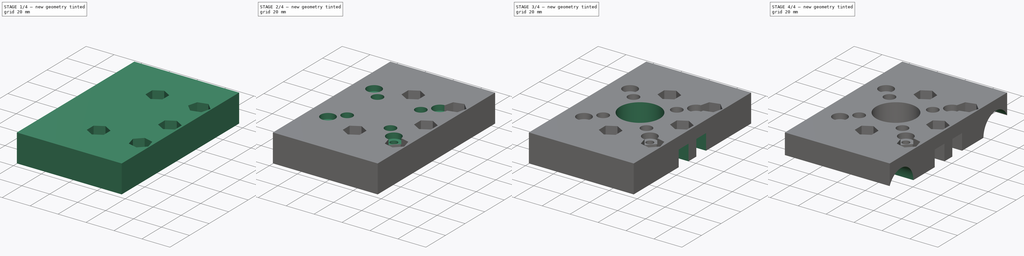
[diagram: build sequence overview — one tinted view per stage of 4, left to right]
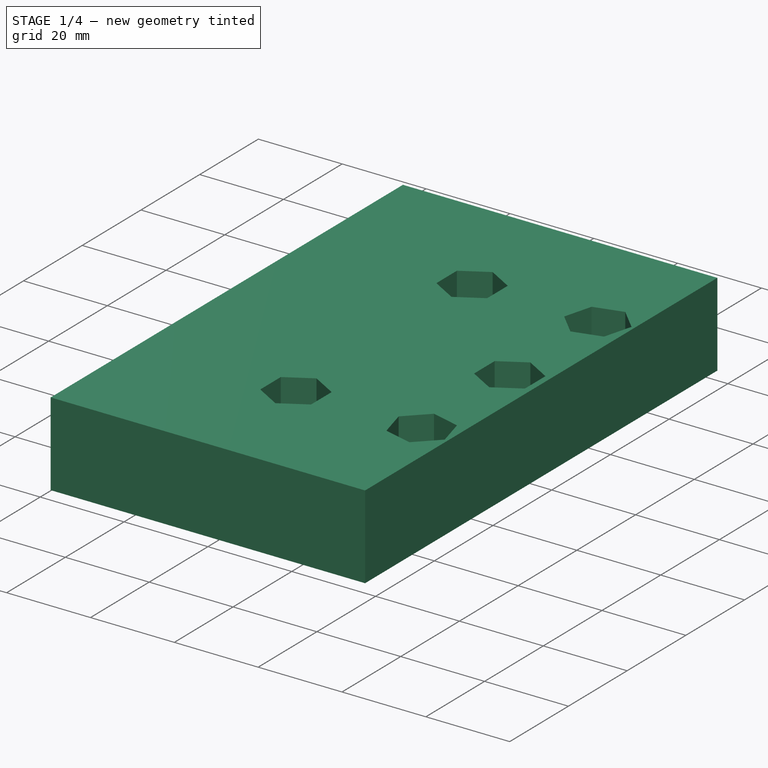
[diagram: stage 1 of 4 — iso view after this stage's code; geometry added in this stage tinted green]
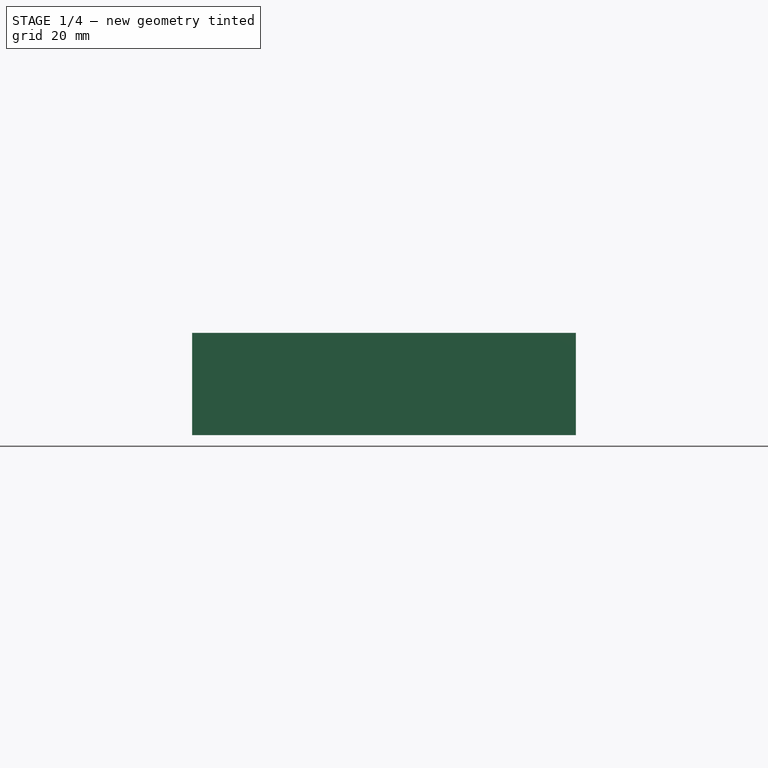
[diagram: stage 1 of 4 — front view after this stage's code; geometry added in this stage tinted green]
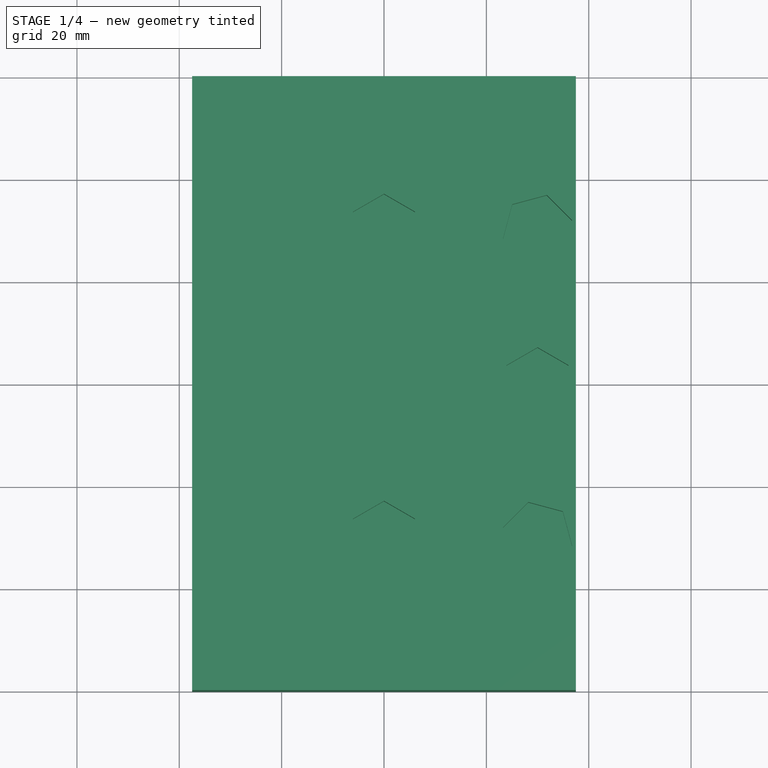
[diagram: stage 1 of 4 — top view after this stage's code; geometry added in this stage tinted green]
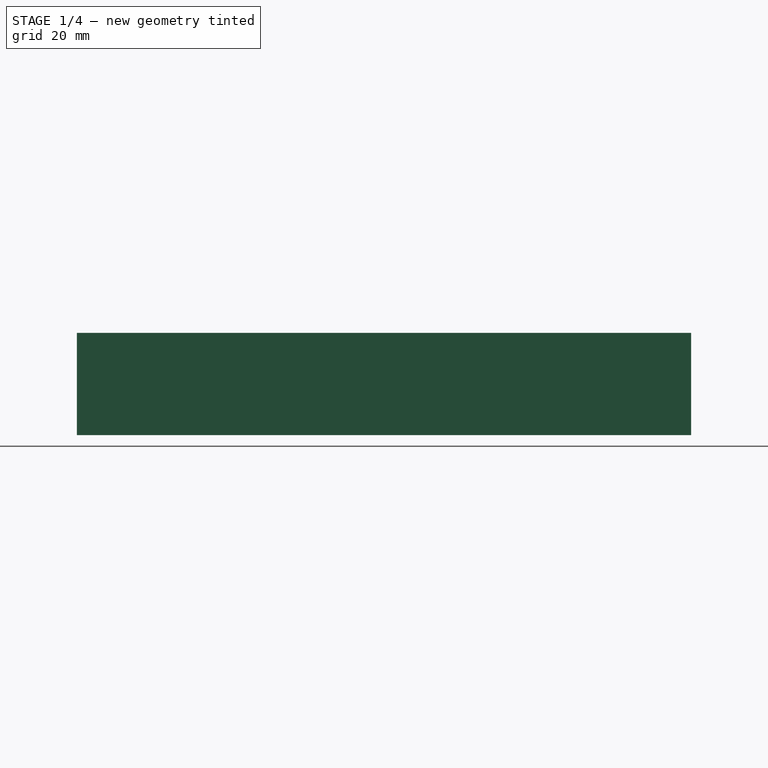
[diagram: stage 1 of 4 — right view after this stage's code; geometry added in this stage tinted green]
FCSTD DOCUMENT  (FreeCAD 0.17R12435 (Git))
Label: 15mmmotor
License: All rights reserved
LicenseURL: http://en.wikipedia.org/wiki/All_rights_reserved
objects: Sketcher::SketchObject×10, PartDesign::Pocket×9, PartDesign::Pad×1
note: 30 computed .brp shape members not serialized (recipe doc carries the construction recipe); baked Part::Feature solids carry a one-line shape summary decoded from their .brp

FEATURE [Sketcher::SketchObject] Sketch  label="MotorBlockSketch"
  MapMode = 5
  sketch-geometry (6):
    g0: LineSegment StartX=-37.5 StartY=60 StartZ=0 EndX=37.5 EndY=60 EndZ=0
    g1: LineSegment StartX=37.5 StartY=60 StartZ=0 EndX=37.5 EndY=-60 EndZ=0
    g2: LineSegment StartX=37.5 StartY=-60 StartZ=0 EndX=-37.5 EndY=-60 EndZ=0
    g3: LineSegment StartX=-37.5 StartY=-60 StartZ=0 EndX=-37.5 EndY=60 EndZ=0
    g4: GeomPoint [constr] X=0 Y=60 Z=0
    g5: GeomPoint [constr] X=-37.5 Y=0 Z=0
  constraints (14):
    c: Coincident(g0,g1)
    c: Coincident(g1,g2)
    c: Coincident(g2,g3)
    c: Coincident(g3,g0)
    c: Horizontal(g0)
    c: Horizontal(g2)
    c: Vertical(g1)
    c: Vertical(g3)
    c: Symmetric(g0,g0,g4)
    c: Symmetric(g0,g2,g5)
    c: DistanceY(g5,g-1) = 0
    c: DistanceX(g-1,g4) = 0
    c: DistanceX(g0,g0) = 75
    c: DistanceY(g1,g0) = 120
FEATURE [PartDesign::Pad] Pad  label="MotorBlockPad"
  Length = 20
  Length2 = 100
  Profile = -> Sketch
  Type = 0
FEATURE [Sketcher::SketchObject] Sketch001  label="NutCatcherFrontSketch"
  MapMode = 5
  Placement = pos=(0,0,20) rot=(0,0,1;0rad)
  Support = -> [Pad]
  sketch-geometry (42):
    g0: LineSegment [constr] StartX=0 StartY=30 StartZ=0 EndX=30 EndY=30 EndZ=0
    g1: LineSegment [constr] StartX=30 StartY=-30 StartZ=0 EndX=0 EndY=-30 EndZ=0
    g2: LineSegment [constr] StartX=0 StartY=-30 StartZ=0 EndX=0 EndY=30 EndZ=0
    g3: LineSegment [constr] StartX=30 StartY=30 StartZ=0 EndX=30 EndY=0 EndZ=0
    g4: LineSegment [constr] StartX=30 StartY=0 StartZ=0 EndX=30 EndY=-30 EndZ=0
    g5: LineSegment [constr] StartX=0 StartY=0 StartZ=0 EndX=30 EndY=30 EndZ=0
    g6: LineSegment [constr] StartX=0 StartY=0 StartZ=0 EndX=30 EndY=-30 EndZ=0
    g7: LineSegment StartX=6.06218 StartY=33.5 StartZ=0 EndX=0 EndY=37 EndZ=0
    g8: LineSegment StartX=0 StartY=37 StartZ=0 EndX=-6.06218 EndY=33.5 EndZ=0
    g9: LineSegment StartX=-6.06218 StartY=33.5 StartZ=0 EndX=-6.06218 EndY=26.5 EndZ=0
    g10: LineSegment StartX=-6.06218 StartY=26.5 StartZ=0 EndX=0 EndY=23 EndZ=0
    g11: LineSegment StartX=0 StartY=23 StartZ=0 EndX=6.06218 EndY=26.5 EndZ=0
    g12: LineSegment StartX=6.06218 StartY=26.5 StartZ=0 EndX=6.06218 EndY=33.5 EndZ=0
    g13: Circle [constr] CenterX=0 CenterY=30 CenterZ=0 NormalX=0 NormalY=0 NormalZ=1 AngleXU=0 Radius=7
    g14: LineSegment StartX=30 StartY=7 StartZ=0 EndX=23.9378 EndY=3.5 EndZ=0
    g15: LineSegment StartX=23.9378 StartY=3.5 StartZ=0 EndX=23.9378 EndY=-3.5 EndZ=0
    g16: LineSegment StartX=23.9378 StartY=-3.5 StartZ=0 EndX=30 EndY=-7 EndZ=0
    g17: LineSegment StartX=30 StartY=-7 StartZ=0 EndX=36.0622 EndY=-3.5 EndZ=0
    g18: LineSegment StartX=36.0622 StartY=-3.5 StartZ=0 EndX=36.0622 EndY=3.5 EndZ=0
    g19: LineSegment StartX=36.0622 StartY=3.5 StartZ=0 EndX=30 EndY=7 EndZ=0
    g20: Circle [constr] CenterX=30 CenterY=0 CenterZ=0 NormalX=0 NormalY=0 NormalZ=1 AngleXU=0 Radius=7
    g21: LineSegment StartX=6.06218 StartY=-26.5 StartZ=0 EndX=0 EndY=-23 EndZ=0
    g22: LineSegment StartX=0 StartY=-23 StartZ=0 EndX=-6.06218 EndY=-26.5 EndZ=0
    g23: LineSegment StartX=-6.06218 StartY=-26.5 StartZ=0 EndX=-6.06218 EndY=-33.5 EndZ=0
    g24: LineSegment StartX=-6.06218 StartY=-33.5 StartZ=0 EndX=0 EndY=-37 EndZ=0
    g25: LineSegment StartX=0 StartY=-37 StartZ=0 EndX=6.06218 EndY=-33.5 EndZ=0
    g26: LineSegment StartX=6.06218 StartY=-33.5 StartZ=0 EndX=6.06218 EndY=-26.5 EndZ=0
    g27: Circle [constr] CenterX=0 CenterY=-30 CenterZ=0 NormalX=0 NormalY=0 NormalZ=1 AngleXU=0 Radius=7
    g28: LineSegment StartX=34.9497 StartY=25.0503 StartZ=0 EndX=36.7615 EndY=31.8117 EndZ=0
    g29: LineSegment StartX=36.7615 StartY=31.8117 StartZ=0 EndX=31.8117 EndY=36.7615 EndZ=0
    g30: LineSegment StartX=31.8117 StartY=36.7615 StartZ=0 EndX=25.0503 EndY=34.9497 EndZ=0
    g31: LineSegment StartX=25.0503 StartY=34.9497 StartZ=0 EndX=23.2385 EndY=28.1883 EndZ=0
    g32: LineSegment StartX=23.2385 StartY=28.1883 StartZ=0 EndX=28.1883 EndY=23.2385 EndZ=0
    g33: LineSegment StartX=28.1883 StartY=23.2385 StartZ=0 EndX=34.9497 EndY=25.0503 EndZ=0
    g34: Circle [constr] CenterX=30 CenterY=30 CenterZ=0 NormalX=0 NormalY=0 NormalZ=1 AngleXU=0 Radius=7
    g35: LineSegment StartX=34.9497 StartY=-25.0503 StartZ=0 EndX=28.1883 EndY=-23.2385 EndZ=0
    g36: LineSegment StartX=28.1883 StartY=-23.2385 StartZ=0 EndX=23.2385 EndY=-28.1883 EndZ=0
    g37: LineSegment StartX=23.2385 StartY=-28.1883 StartZ=0 EndX=25.0503 EndY=-34.9497 EndZ=0
    g38: LineSegment StartX=25.0503 StartY=-34.9497 StartZ=0 EndX=31.8117 EndY=-36.7615 EndZ=0
    g39: LineSegment StartX=31.8117 StartY=-36.7615 StartZ=0 EndX=36.7615 EndY=-31.8117 EndZ=0
    g40: LineSegment StartX=36.7615 StartY=-31.8117 StartZ=0 EndX=34.9497 EndY=-25.0503 EndZ=0
    g41: Circle [constr] CenterX=30 CenterY=-30 CenterZ=0 NormalX=0 NormalY=0 NormalZ=1 AngleXU=0 Radius=7
  constraints (98):
    c: Coincident(g1,g2)
    c: Coincident(g2,g0)
    c: Horizontal(g0)
    c: Horizontal(g1)
    c: Vertical(g2)
    c: Vertical(g3)
    c: Vertical(g4)
    c: Coincident(g3,g0)
    c: Coincident(g1,g4)
    c: Coincident(g3,g4)
    c: Equal(g3,g4)
    c: Symmetric(g2,g2,g-1)
    c: Equal(g0,g3)
    c: DistanceX(g0,g0) = 30
    c: Coincident(g5,g-1)
    c: Coincident(g5,g0)
    c: Coincident(g6,g-1)
    c: Coincident(g1,g6)
    c: Coincident(g7,g8)
    c: Coincident(g8,g9)
    c: Coincident(g9,g10)
    c: Coincident(g10,g11)
    c: Coincident(g11,g12)
    c: Coincident(g12,g7)
    c: Equal(g7, g8-g12) x5
    c: PointOnObject(g7,g13)
    c: PointOnObject(g8,g13)
    c: PointOnObject(g9,g13)
    c: PointOnObject(g10,g13)
    c: PointOnObject(g11,g13)
    c: PointOnObject(g12,g13)
    c: Vertical(g12)
    c: Coincident(g0,g13)
    c: Coincident(g14,g15)
    c: Coincident(g15,g16)
    c: Coincident(g16,g17)
    c: Coincident(g17,g18)
    c: Coincident(g18,g19)
    c: Coincident(g19,g14)
    c: Equal(g14, g15-g19) x5
    c: PointOnObject(g14,g20)
    c: PointOnObject(g15,g20)
    c: PointOnObject(g16,g20)
    c: PointOnObject(g17,g20)
    c: PointOnObject(g18,g20)
    c: PointOnObject(g19,g20)
    c: Vertical(g18)
    c: Coincident(g3,g20)
    c: Coincident(g21,g22)
    c: Coincident(g22,g23)
    c: Coincident(g23,g24)
    c: Coincident(g24,g25)
    c: Coincident(g25,g26)
    c: Coincident(g26,g21)
    c: Equal(g21, g22-g26) x5
    c: PointOnObject(g21,g27)
    c: PointOnObject(g22,g27)
    c: PointOnObject(g23,g27)
    c: PointOnObject(g24,g27)
    c: PointOnObject(g25,g27)
    c: PointOnObject(g26,g27)
    c: Vertical(g26)
    c: Coincident(g1,g27)
    c: Coincident(g28,g29)
    c: Coincident(g29,g30)
    c: Coincident(g30,g31)
    c: Coincident(g31,g32)
    c: Coincident(g32,g33)
    c: Coincident(g33,g28)
    c: Equal(g28, g29-g33) x5
    c: PointOnObject(g28,g34)
    c: PointOnObject(g29,g34)
    c: PointOnObject(g30,g34)
    c: PointOnObject(g31,g34)
    c: PointOnObject(g32,g34)
    c: PointOnObject(g33,g34)
    c: Coincident(g34,g0)
    c: Perpendicular(g5,g32)
    c: Coincident(g35,g36)
    c: Coincident(g36,g37)
    c: Coincident(g37,g38)
    c: Coincident(g38,g39)
    c: Coincident(g39,g40)
    c: Coincident(g40,g35)
    c: Equal(g35, g36-g40) x5
    c: PointOnObject(g35,g41)
    c: PointOnObject(g36,g41)
    c: PointOnObject(g37,g41)
    c: PointOnObject(g38,g41)
    c: PointOnObject(g39,g41)
    c: PointOnObject(g40,g41)
    c: Coincident(g41,g1)
    c: Perpendicular(g6,g36)
    c: Equal(g41,g27)
    c: Equal(g27,g20)
    c: Equal(g20,g34)
    c: Equal(g34,g13)
    c: Radius(g13) = 7
FEATURE [PartDesign::Pocket] Pocket  label="NutCatcherFrontPocket"
  Length = 6.604
  Profile = -> Sketch001
  Type = 0
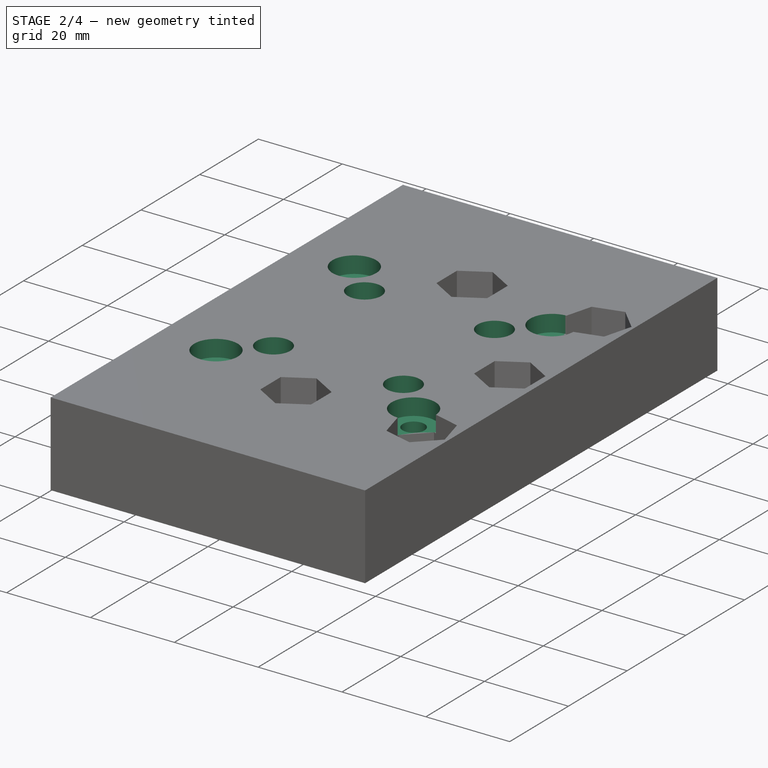
[diagram: stage 2 of 4 — iso view after this stage's code; geometry added in this stage tinted green]
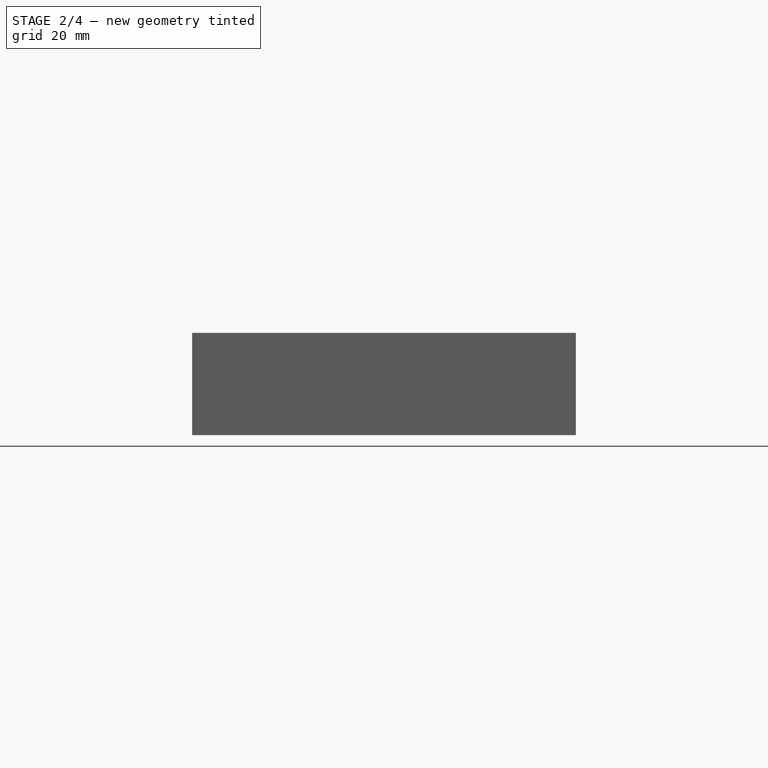
[diagram: stage 2 of 4 — front view after this stage's code; geometry added in this stage tinted green]
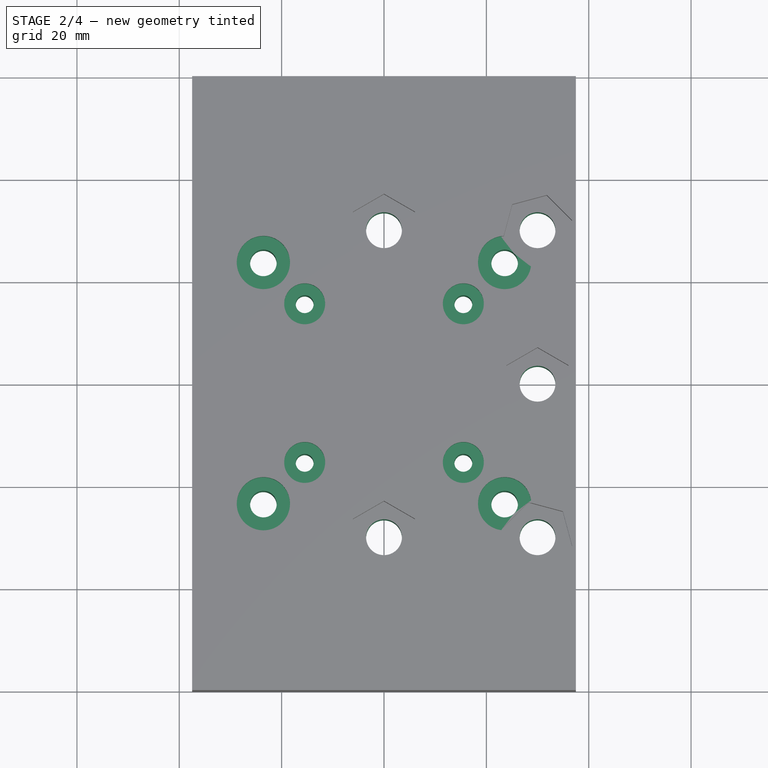
[diagram: stage 2 of 4 — top view after this stage's code; geometry added in this stage tinted green]
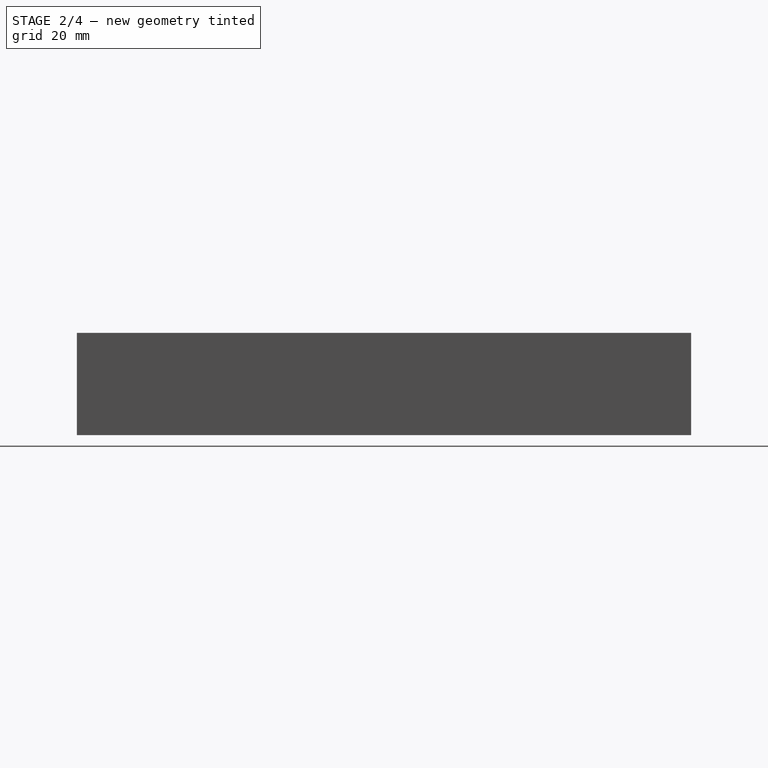
[diagram: stage 2 of 4 — right view after this stage's code; geometry added in this stage tinted green]
FEATURE [Sketcher::SketchObject] Sketch002  label="BoltHolesFrontSketch"
  MapMode = 5
  Placement = pos=(0,0,13.396) rot=(0,0,1;0rad)
  Support = -> [Pocket]
  sketch-geometry (10):
    g0: LineSegment [constr] StartX=0 StartY=30 StartZ=0 EndX=30 EndY=30 EndZ=0
    g1: LineSegment [constr] StartX=30 StartY=-30 StartZ=0 EndX=0 EndY=-30 EndZ=0
    g2: LineSegment [constr] StartX=0 StartY=-30 StartZ=0 EndX=0 EndY=30 EndZ=0
    g3: LineSegment [constr] StartX=30 StartY=30 StartZ=0 EndX=30 EndY=0 EndZ=0
    g4: LineSegment [constr] StartX=30 StartY=0 StartZ=0 EndX=30 EndY=-30 EndZ=0
    g5: Circle CenterX=0 CenterY=30 CenterZ=0 NormalX=0 NormalY=0 NormalZ=1 AngleXU=0 Radius=3.5
    g6: Circle CenterX=30 CenterY=30 CenterZ=0 NormalX=0 NormalY=0 NormalZ=1 AngleXU=0 Radius=3.5
    g7: Circle CenterX=30 CenterY=-30 CenterZ=0 NormalX=0 NormalY=0 NormalZ=1 AngleXU=0 Radius=3.5
    g8: Circle CenterX=0 CenterY=-30 CenterZ=0 NormalX=0 NormalY=0 NormalZ=1 AngleXU=0 Radius=3.5
    g9: Circle CenterX=30 CenterY=0 CenterZ=0 NormalX=0 NormalY=0 NormalZ=1 AngleXU=0 Radius=3.5
  constraints (25):
    c: Coincident(g1,g2)
    c: Coincident(g2,g0)
    c: Horizontal(g0)
    c: Horizontal(g1)
    c: Vertical(g2)
    c: Symmetric(g2,g2,g-1)
    c: Vertical(g3)
    c: Coincident(g3,g0)
    c: Vertical(g4)
    c: Coincident(g4,g1)
    c: Coincident(g4,g3)
    c: DistanceY(g3,g-1) = 0
    c: Equal(g3,g4)
    c: Equal(g0,g3)
    c: DistanceX(g0,g0) = 30
    c: Equal(g8,g7)
    c: Equal(g7,g6)
    c: Equal(g6,g5)
    c: Radius(g5) = 3.5
    c: Coincident(g0,g5)
    c: Coincident(g0,g6)
    c: Equal(g9,g5)
    c: Coincident(g3,g9)
    c: Coincident(g1,g7)
    c: Coincident(g1,g8)
FEATURE [PartDesign::Pocket] Pocket001  label="BoltHolesFrontPocket"
  Length = 5
  Profile = -> Sketch002
  Type = 1
FEATURE [Sketcher::SketchObject] Sketch003  label="NemaBoltSinkSketch"
  MapMode = 5
  Placement = pos=(0,0,20) rot=(0,0,1;0rad)
  Support = -> [Pocket001]
  sketch-geometry (20):
    g0: LineSegment [constr] StartX=-23.57 StartY=23.57 StartZ=0 EndX=23.57 EndY=23.57 EndZ=0
    g1: LineSegment [constr] StartX=23.57 StartY=23.57 StartZ=0 EndX=23.57 EndY=-23.57 EndZ=0
    g2: LineSegment [constr] StartX=23.57 StartY=-23.57 StartZ=0 EndX=-23.57 EndY=-23.57 EndZ=0
    g3: LineSegment [constr] StartX=-23.57 StartY=-23.57 StartZ=0 EndX=-23.57 EndY=23.57 EndZ=0
    g4: GeomPoint [constr] X=-23.57 Y=0 Z=0
    g5: GeomPoint [constr] X=0 Y=23.57 Z=0
    g6: Circle CenterX=-23.57 CenterY=23.57 CenterZ=0 NormalX=0 NormalY=0 NormalZ=1 AngleXU=0 Radius=5.2
    g7: Circle CenterX=23.57 CenterY=23.57 CenterZ=0 NormalX=0 NormalY=0 NormalZ=1 AngleXU=0 Radius=5.2
    g8: Circle CenterX=23.57 CenterY=-23.57 CenterZ=0 NormalX=0 NormalY=0 NormalZ=1 AngleXU=0 Radius=5.2
    g9: Circle CenterX=-23.57 CenterY=-23.57 CenterZ=0 NormalX=0 NormalY=0 NormalZ=1 AngleXU=0 Radius=5.2
    g10: LineSegment [constr] StartX=-15.5 StartY=15.5 StartZ=0 EndX=15.5 EndY=15.5 EndZ=0
    g11: LineSegment [constr] StartX=15.5 StartY=15.5 StartZ=0 EndX=15.5 EndY=-15.5 EndZ=0
    g12: LineSegment [constr] StartX=15.5 StartY=-15.5 StartZ=0 EndX=-15.5 EndY=-15.5 EndZ=0
    g13: LineSegment [constr] StartX=-15.5 StartY=-15.5 StartZ=0 EndX=-15.5 EndY=15.5 EndZ=0
    g14: GeomPoint [constr] X=-15.5 Y=0 Z=0
    g15: GeomPoint [constr] X=0 Y=15.5 Z=0
    g16: Circle CenterX=-15.5 CenterY=15.5 CenterZ=0 NormalX=0 NormalY=0 NormalZ=1 AngleXU=0 Radius=4
    g17: Circle CenterX=15.5 CenterY=15.5 CenterZ=0 NormalX=0 NormalY=0 NormalZ=1 AngleXU=0 Radius=4
    g18: Circle CenterX=15.5 CenterY=-15.5 CenterZ=0 NormalX=0 NormalY=0 NormalZ=1 AngleXU=0 Radius=4
    g19: Circle CenterX=-15.5 CenterY=-15.5 CenterZ=0 NormalX=0 NormalY=0 NormalZ=1 AngleXU=0 Radius=4
  constraints (44):
    c: Coincident(g0,g1)
    c: Coincident(g1,g2)
    c: Coincident(g2,g3)
    c: Coincident(g3,g0)
    c: Horizontal(g0)
    c: Horizontal(g2)
    c: Vertical(g1)
    c: Vertical(g3)
    c: Symmetric(g0,g0,g5)
    c: Symmetric(g0,g2,g4)
    c: DistanceY(g4,g-1) = 0
    c: DistanceX(g5,g-1) = 0
    c: Equal(g3,g0)
    c: DistanceX(g0,g0) = 47.14
    c: Coincident(g6,g0)
    c: Coincident(g0,g7)
    c: Coincident(g2,g9)
    c: Coincident(g1,g8)
    c: Equal(g6,g7)
    c: Equal(g7,g8)
    c: Equal(g8,g9)
    c: Radius(g6) = 5.2
    c: Coincident(g10,g11)
    c: Coincident(g11,g12)
    c: Coincident(g12,g13)
    c: Coincident(g13,g10)
    c: Horizontal(g10)
    c: Horizontal(g12)
    c: Vertical(g11)
    c: Vertical(g13)
    c: Symmetric(g10,g10,g15)
    c: Symmetric(g10,g12,g14)
    c: Equal(g13,g10)
    c: DistanceX(g10,g10) = 31
    c: DistanceY(g14,g-1) = 0
    c: DistanceX(g15,g-1) = 0
    c: Coincident(g12,g19)
    c: Coincident(g11,g18)
    c: Coincident(g10,g17)
    c: Coincident(g10,g16)
    c: Equal(g18,g17)
    c: Equal(g17,g16)
    c: Equal(g16,g19)
    c: Radius(g16) = 4
FEATURE [PartDesign::Pocket] Pocket002  label="NemaBoltSinkPocket"
  Length = 4
  Profile = -> Sketch003
  Type = 0
FEATURE [Sketcher::SketchObject] Sketch004  label="NemaBoltHolesSketch"
  MapMode = 5
  Placement = pos=(0,0,16) rot=(0,0,1;0rad)
  Support = -> [Pocket002]
  sketch-geometry (20):
    g0: LineSegment [constr] StartX=-23.57 StartY=23.57 StartZ=0 EndX=23.57 EndY=23.57 EndZ=0
    g1: LineSegment [constr] StartX=23.57 StartY=23.57 StartZ=0 EndX=23.57 EndY=-23.57 EndZ=0
    g2: LineSegment [constr] StartX=23.57 StartY=-23.57 StartZ=0 EndX=-23.57 EndY=-23.57 EndZ=0
    g3: LineSegment [constr] StartX=-23.57 StartY=-23.57 StartZ=0 EndX=-23.57 EndY=23.57 EndZ=0
    g4: GeomPoint [constr] X=-23.57 Y=0 Z=0
    g5: GeomPoint [constr] X=0 Y=23.57 Z=0
    g6: Circle CenterX=-23.57 CenterY=23.57 CenterZ=0 NormalX=0 NormalY=0 NormalZ=1 AngleXU=0 Radius=2.6
    g7: Circle CenterX=23.57 CenterY=23.57 CenterZ=0 NormalX=0 NormalY=0 NormalZ=1 AngleXU=0 Radius=2.6
    g8: Circle CenterX=23.57 CenterY=-23.57 CenterZ=0 NormalX=0 NormalY=0 NormalZ=1 AngleXU=0 Radius=2.6
    g9: Circle CenterX=-23.57 CenterY=-23.57 CenterZ=0 NormalX=0 NormalY=0 NormalZ=1 AngleXU=0 Radius=2.6
    g10: LineSegment [constr] StartX=-15.5 StartY=15.5 StartZ=0 EndX=15.5 EndY=15.5 EndZ=0
    g11: LineSegment [constr] StartX=15.5 StartY=15.5 StartZ=0 EndX=15.5 EndY=-15.5 EndZ=0
    g12: LineSegment [constr] StartX=15.5 StartY=-15.5 StartZ=0 EndX=-15.5 EndY=-15.5 EndZ=0
    g13: LineSegment [constr] StartX=-15.5 StartY=-15.5 StartZ=0 EndX=-15.5 EndY=15.5 EndZ=0
    g14: GeomPoint [constr] X=-15.5 Y=0 Z=0
    g15: GeomPoint [constr] X=0 Y=15.5 Z=0
    g16: Circle CenterX=-15.5 CenterY=15.5 CenterZ=0 NormalX=0 NormalY=0 NormalZ=1 AngleXU=0 Radius=1.75
    g17: Circle CenterX=15.5 CenterY=15.5 CenterZ=0 NormalX=0 NormalY=0 NormalZ=1 AngleXU=0 Radius=1.75
    g18: Circle CenterX=-15.5 CenterY=-15.5 CenterZ=0 NormalX=0 NormalY=0 NormalZ=1 AngleXU=0 Radius=1.75
    g19: Circle CenterX=15.5 CenterY=-15.5 CenterZ=0 NormalX=0 NormalY=0 NormalZ=1 AngleXU=0 Radius=1.75
  constraints (44):
    c: Coincident(g0,g1)
    c: Coincident(g1,g2)
    c: Coincident(g2,g3)
    c: Coincident(g3,g0)
    c: Horizontal(g0)
    c: Horizontal(g2)
    c: Vertical(g1)
    c: Vertical(g3)
    c: Symmetric(g0,g0,g5)
    c: Symmetric(g0,g2,g4)
    c: DistanceY(g4,g-1) = 0
    c: DistanceX(g5,g-1) = 0
    c: Equal(g3,g0)
    c: DistanceX(g0,g0) = 47.14
    c: Equal(g9,g8)
    c: Equal(g8,g7)
    c: Equal(g7,g6)
    c: Coincident(g0,g6)
    c: Coincident(g0,g7)
    c: Coincident(g1,g8)
    c: Coincident(g2,g9)
    c: Radius(g6) = 2.6
    c: Coincident(g10,g11)
    c: Coincident(g11,g12)
    c: Coincident(g12,g13)
    c: Coincident(g13,g10)
    c: Horizontal(g10)
    c: Horizontal(g12)
    c: Vertical(g11)
    c: Vertical(g13)
    c: Symmetric(g10,g10,g15)
    c: Symmetric(g10,g12,g14)
    c: DistanceY(g14,g-1) = 0
    c: DistanceX(g15,g-1) = 0
    c: Equal(g13,g10)
    c: DistanceX(g10,g10) = 31
    c: Equal(g19,g17)
    c: Equal(g17,g16)
    c: Equal(g16,g18)
    c: Coincident(g19,g11)
    c: Coincident(g10,g17)
    c: Coincident(g10,g16)
    c: Coincident(g12,g18)
    c: Radius(g16) = 1.75
FEATURE [PartDesign::Pocket] Pocket003  label="NemaBoltHolesPocket"
  Length = 5
  Profile = -> Sketch004
  Type = 1
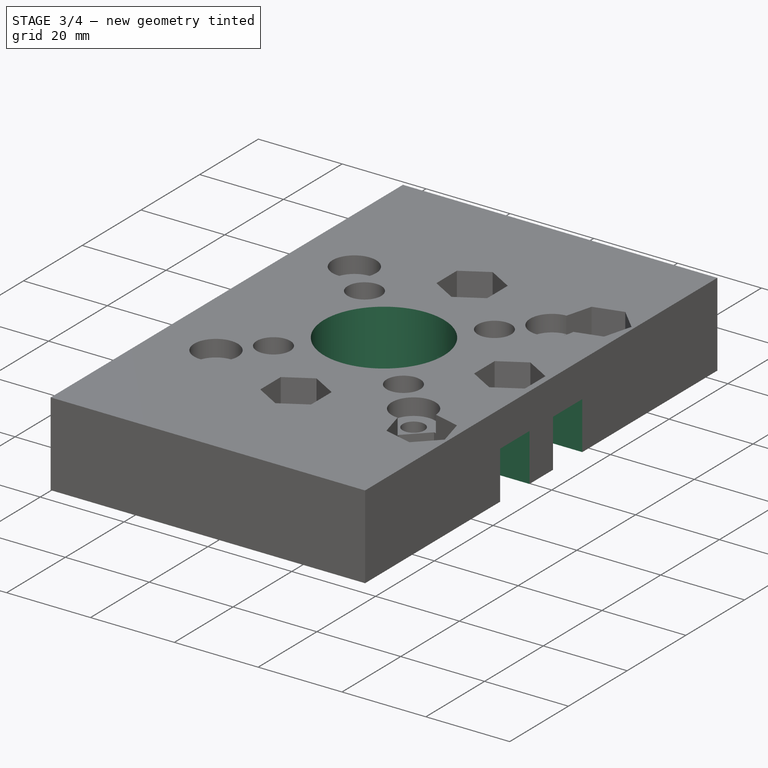
[diagram: stage 3 of 4 — iso view after this stage's code; geometry added in this stage tinted green]
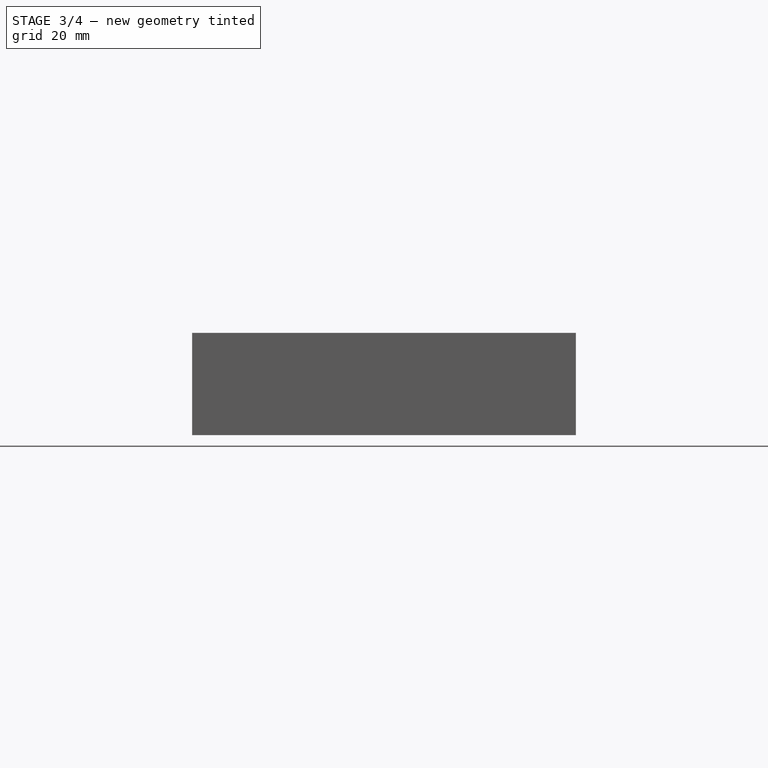
[diagram: stage 3 of 4 — front view after this stage's code; geometry added in this stage tinted green]
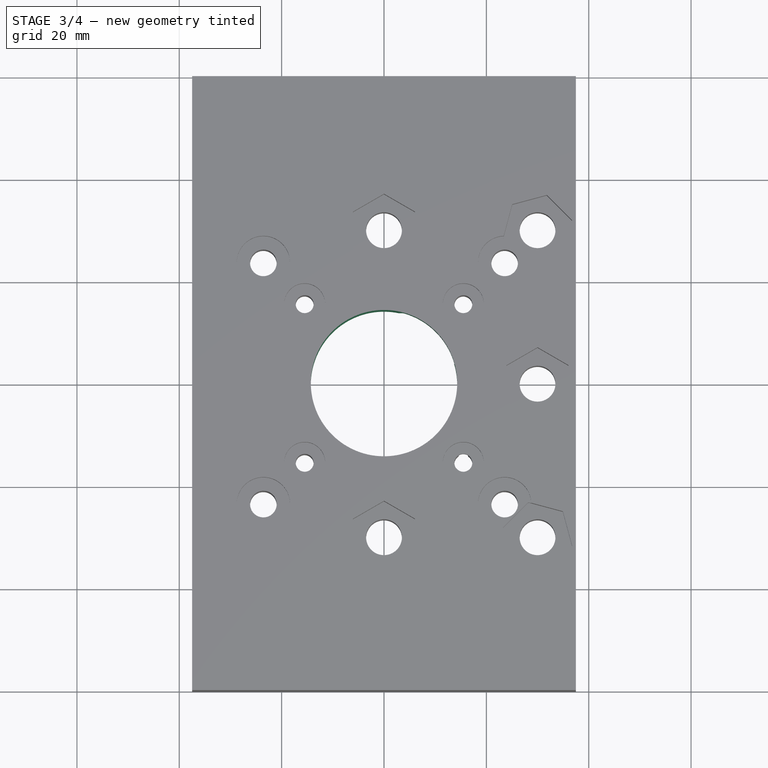
[diagram: stage 3 of 4 — top view after this stage's code; geometry added in this stage tinted green]
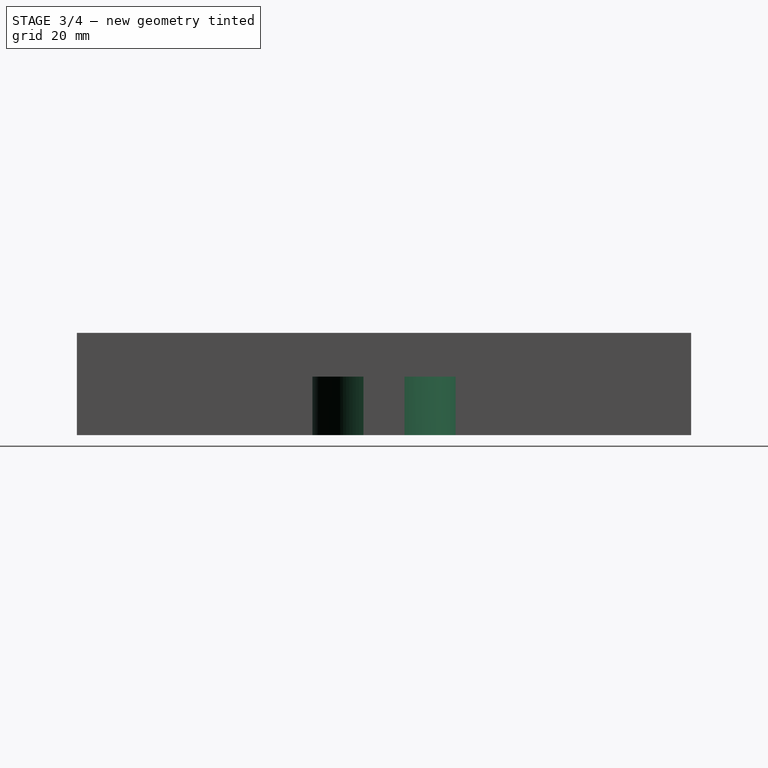
[diagram: stage 3 of 4 — right view after this stage's code; geometry added in this stage tinted green]
FEATURE [Sketcher::SketchObject] Sketch005  label="MotorHoleSketch"
  MapMode = 5
  Placement = pos=(0,0,20) rot=(0,0,1;0rad)
  Support = -> [Pocket003]
  sketch-geometry (1):
    g0: Circle CenterX=0 CenterY=0 CenterZ=0 NormalX=0 NormalY=0 NormalZ=1 AngleXU=0 Radius=14.3
  constraints (2):
    c: Coincident(g0,g-1)
    c: Radius(g0) = 14.3
FEATURE [PartDesign::Pocket] Pocket004  label="MotorHolePocket"
  Length = 5
  Profile = -> Sketch005
  Type = 1
FEATURE [Sketcher::SketchObject] Sketch006  label="BeltPassageSketch"
  MapMode = 5
  Placement = pos=(37.5,0,0) rot=(0.57735,0.57735,0.57735;2.0944rad)
  Support = -> [Pocket004]
  sketch-geometry (10):
    g0: LineSegment [constr] StartX=0 StartY=0 StartZ=0 EndX=-4 EndY=0 EndZ=0
    g1: LineSegment [constr] StartX=0 StartY=0 StartZ=0 EndX=4 EndY=0 EndZ=0
    g2: LineSegment StartX=-4 StartY=0 StartZ=0 EndX=-14 EndY=0 EndZ=0
    g3: LineSegment StartX=-14 StartY=0 StartZ=0 EndX=-14 EndY=11.43 EndZ=0
    g4: LineSegment StartX=-14 StartY=11.43 StartZ=0 EndX=-4 EndY=11.43 EndZ=0
    g5: LineSegment StartX=-4 StartY=11.43 StartZ=0 EndX=-4 EndY=0 EndZ=0
    g6: LineSegment StartX=4 StartY=0 StartZ=0 EndX=14 EndY=0 EndZ=0
    g7: LineSegment StartX=14 StartY=0 StartZ=0 EndX=14 EndY=11.43 EndZ=0
    g8: LineSegment StartX=14 StartY=11.43 StartZ=0 EndX=4 EndY=11.43 EndZ=0
    g9: LineSegment StartX=4 StartY=11.43 StartZ=0 EndX=4 EndY=0 EndZ=0
  constraints (28):
    c: Horizontal(g0)
    c: Horizontal(g1)
    c: Coincident(g0,g-1)
    c: Coincident(g1,g-1)
    c: Equal(g0,g1)
    c: DistanceX(g0,g-1) = 4
    c: Coincident(g2,g3)
    c: Coincident(g3,g4)
    c: Coincident(g4,g5)
    c: Coincident(g5,g2)
    c: Horizontal(g2)
    c: Horizontal(g4)
    c: Vertical(g3)
    c: Vertical(g5)
    c: Coincident(g2,g0)
    c: Coincident(g6,g7)
    c: Coincident(g7,g8)
    c: Coincident(g8,g9)
    c: Coincident(g9,g6)
    c: Horizontal(g6)
    c: Horizontal(g8)
    c: Vertical(g7)
    c: Vertical(g9)
    c: Coincident(g6,g1)
    c: Equal(g4,g8)
    c: Equal(g3,g9)
    c: DistanceX(g3,g4) = 10
    c: DistanceY(g2,g3) = 11.43
FEATURE [PartDesign::Pocket] Pocket005  label="BeltPassagePocket"
  Length = 37.5
  Profile = -> Sketch006
  Type = 0
FEATURE [Sketcher::SketchObject] Sketch007  label="BoltHolesSideSketch"
  MapMode = 5
  Placement = pos=(-37.5,0,0) rot=(0.57735,-0.57735,-0.57735;2.0944rad)
  Support = -> [Pocket005]
  sketch-geometry (5):
    g0: LineSegment [constr] StartX=0 StartY=0 StartZ=0 EndX=-30 EndY=0 EndZ=0
    g1: LineSegment [constr] StartX=0 StartY=0 StartZ=0 EndX=30 EndY=0 EndZ=0
    g2: Circle CenterX=-30 CenterY=0 CenterZ=0 NormalX=0 NormalY=0 NormalZ=1 AngleXU=0 Radius=3.5
    g3: Circle CenterX=0 CenterY=0 CenterZ=0 NormalX=0 NormalY=0 NormalZ=1 AngleXU=0 Radius=3.5
    g4: Circle CenterX=30 CenterY=0 CenterZ=0 NormalX=0 NormalY=0 NormalZ=1 AngleXU=0 Radius=3.5
  constraints (12):
    c: Horizontal(g0)
    c: Horizontal(g1)
    c: Coincident(g0,g-1)
    c: Coincident(g-1,g1)
    c: Equal(g0,g1)
    c: DistanceX(g0,g-1) = 30
    c: Equal(g4,g3)
    c: Equal(g3,g2)
    c: Coincident(g2,g0)
    c: Coincident(g3,g-1)
    c: Coincident(g4,g1)
    c: Radius(g2) = 3.5
FEATURE [PartDesign::Pocket] Pocket006  label="BoltHolesSidePocket"
  Length = 5
  Profile = -> Sketch007
  Type = 0
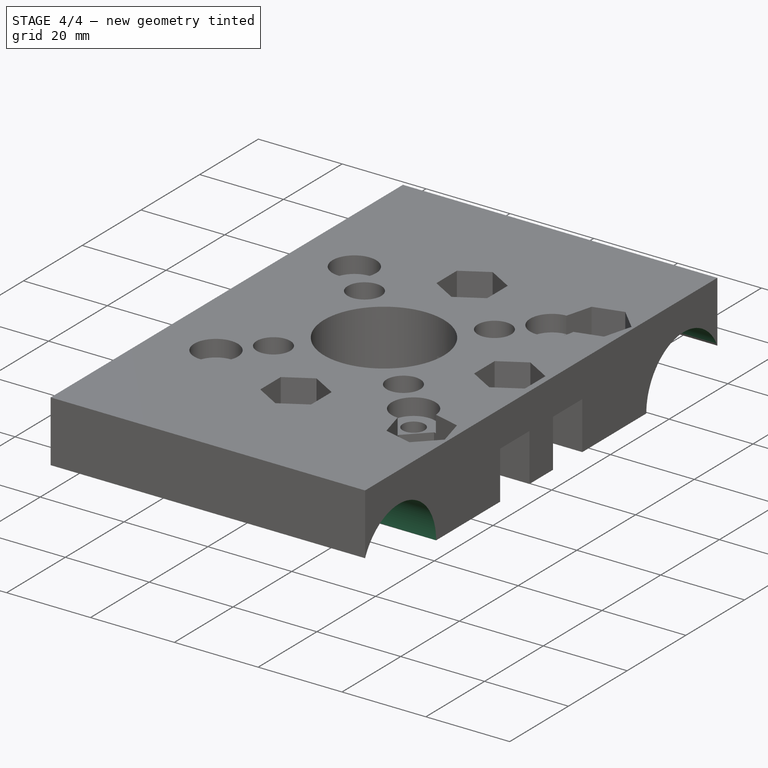
[diagram: stage 4 of 4 — iso view after this stage's code; geometry added in this stage tinted green]
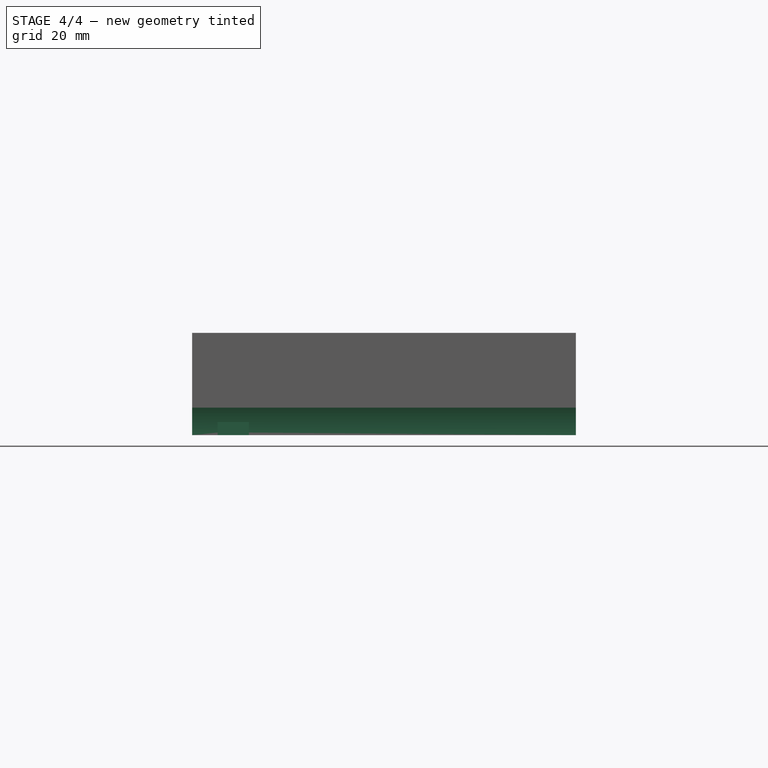
[diagram: stage 4 of 4 — front view after this stage's code; geometry added in this stage tinted green]
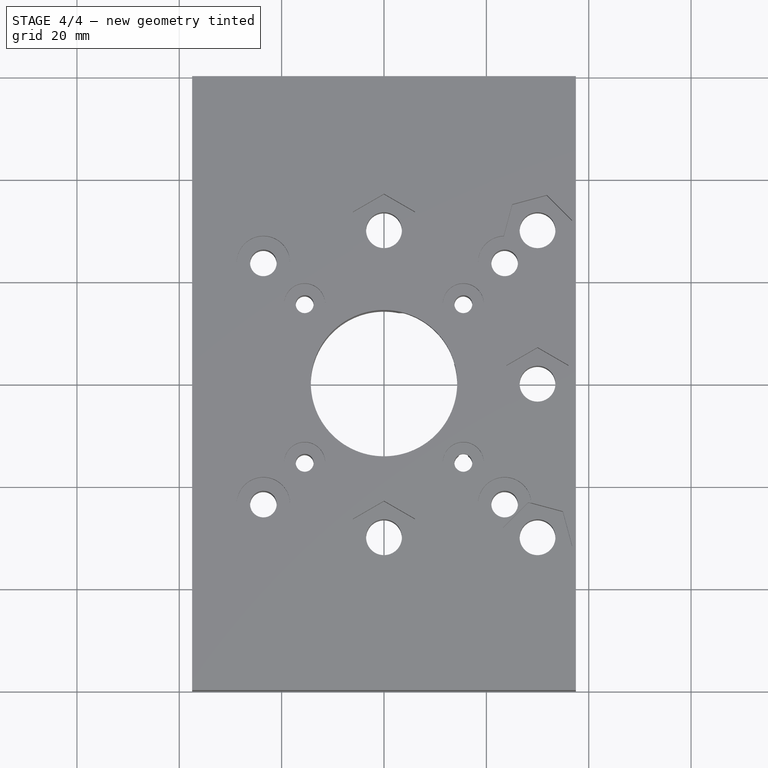
[diagram: stage 4 of 4 — top view after this stage's code; geometry added in this stage tinted green]
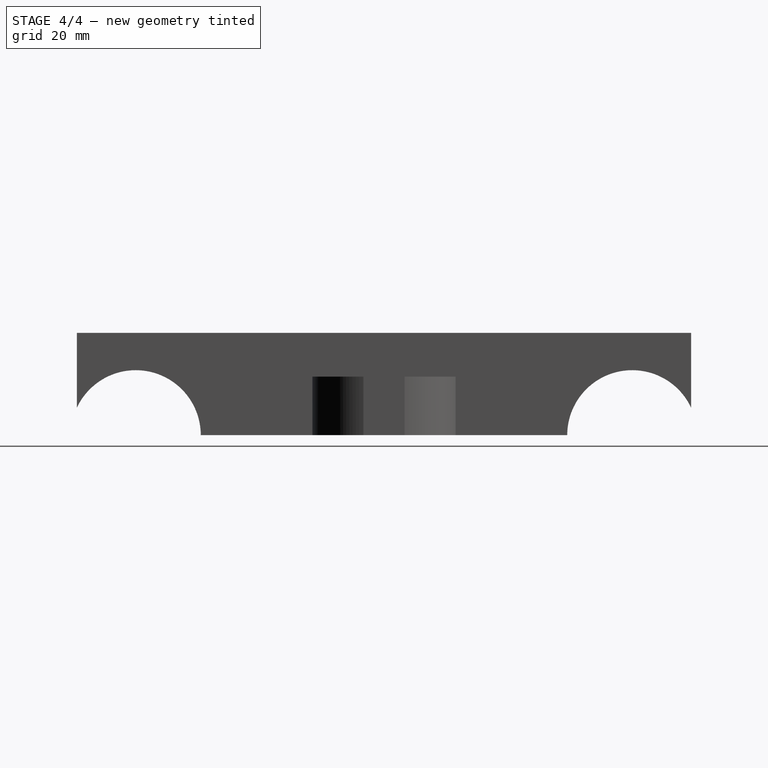
[diagram: stage 4 of 4 — right view after this stage's code; geometry added in this stage tinted green]
FEATURE [Sketcher::SketchObject] Sketch008  label="NutCathersSideSketch"
  MapMode = 5
  Placement = pos=(-32.5,0,0) rot=(-0.57735,0.57735,0.57735;4.18879rad)
  Support = -> [Pocket006]
  sketch-geometry (23):
    g0: LineSegment [constr] StartX=0 StartY=0 StartZ=0 EndX=-30 EndY=0 EndZ=0
    g1: LineSegment [constr] StartX=0 StartY=0 StartZ=0 EndX=30 EndY=0 EndZ=0
    g2: LineSegment StartX=-36.0622 StartY=-3.5 StartZ=0 EndX=-30 EndY=-7 EndZ=0
    g3: LineSegment StartX=-30 StartY=-7 StartZ=0 EndX=-23.9378 EndY=-3.5 EndZ=0
    g4: LineSegment StartX=-23.9378 StartY=-3.5 StartZ=0 EndX=-23.9378 EndY=3.5 EndZ=0
    g5: LineSegment StartX=-23.9378 StartY=3.5 StartZ=0 EndX=-30 EndY=7 EndZ=0
    g6: LineSegment StartX=-30 StartY=7 StartZ=0 EndX=-36.0622 EndY=3.5 EndZ=0
    g7: LineSegment StartX=-36.0622 StartY=3.5 StartZ=0 EndX=-36.0622 EndY=-3.5 EndZ=0
    g8: Circle [constr] CenterX=-30 CenterY=0 CenterZ=0 NormalX=0 NormalY=0 NormalZ=1 AngleXU=0 Radius=7
    g9: LineSegment StartX=-6.06218 StartY=-3.5 StartZ=0 EndX=0 EndY=-7 EndZ=0
    g10: LineSegment StartX=0 StartY=-7 StartZ=0 EndX=6.06218 EndY=-3.5 EndZ=0
    g11: LineSegment StartX=6.06218 StartY=-3.5 StartZ=0 EndX=6.06218 EndY=3.5 EndZ=0
    g12: LineSegment StartX=6.06218 StartY=3.5 StartZ=0 EndX=0 EndY=7 EndZ=0
    g13: LineSegment StartX=0 StartY=7 StartZ=0 EndX=-6.06218 EndY=3.5 EndZ=0
    g14: LineSegment StartX=-6.06218 StartY=3.5 StartZ=0 EndX=-6.06218 EndY=-3.5 EndZ=0
    g15: Circle [constr] CenterX=0 CenterY=0 CenterZ=0 NormalX=0 NormalY=0 NormalZ=1 AngleXU=0 Radius=7
    g16: LineSegment StartX=36.0622 StartY=3.5 StartZ=0 EndX=30 EndY=7 EndZ=0
    g17: LineSegment StartX=30 StartY=7 StartZ=0 EndX=23.9378 EndY=3.5 EndZ=0
    g18: LineSegment StartX=23.9378 StartY=3.5 StartZ=0 EndX=23.9378 EndY=-3.5 EndZ=0
    g19: LineSegment StartX=23.9378 StartY=-3.5 StartZ=0 EndX=30 EndY=-7 EndZ=0
    g20: LineSegment StartX=30 StartY=-7 StartZ=0 EndX=36.0622 EndY=-3.5 EndZ=0
    g21: LineSegment StartX=36.0622 StartY=-3.5 StartZ=0 EndX=36.0622 EndY=3.5 EndZ=0
    g22: Circle [constr] CenterX=30 CenterY=0 CenterZ=0 NormalX=0 NormalY=0 NormalZ=1 AngleXU=0 Radius=7
  constraints (54):
    c: Horizontal(g0)
    c: Horizontal(g1)
    c: Coincident(g0,g-1)
    c: Coincident(g-1,g1)
    c: Equal(g0,g1)
    c: DistanceX(g0,g-1) = 30
    c: Coincident(g2,g3)
    c: Coincident(g3,g4)
    c: Coincident(g4,g5)
    c: Coincident(g5,g6)
    c: Coincident(g6,g7)
    c: Coincident(g7,g2)
    c: Equal(g2, g3-g7) x5
    c: PointOnObject(g2,g8)
    c: PointOnObject(g3,g8)
    c: PointOnObject(g4,g8)
    c: PointOnObject(g5,g8)
    c: PointOnObject(g6,g8)
    c: PointOnObject(g7,g8)
    c: Vertical(g7)
    c: Coincident(g0,g8)
    c: Coincident(g9,g10)
    c: Coincident(g10,g11)
    c: Coincident(g11,g12)
    c: Coincident(g12,g13)
    c: Coincident(g13,g14)
    c: Coincident(g14,g9)
    c: Equal(g9, g10-g14) x5
    c: PointOnObject(g9,g15)
    c: PointOnObject(g10,g15)
    c: PointOnObject(g11,g15)
    c: PointOnObject(g12,g15)
    c: PointOnObject(g13,g15)
    c: PointOnObject(g14,g15)
    c: Vertical(g14)
    c: Coincident(g-1,g15)
    c: Coincident(g16,g17)
    c: Coincident(g17,g18)
    c: Coincident(g18,g19)
    c: Coincident(g19,g20)
    c: Coincident(g20,g21)
    c: Coincident(g21,g16)
    c: Equal(g16, g17-g21) x5
    c: PointOnObject(g16,g22)
    c: PointOnObject(g17,g22)
    c: PointOnObject(g18,g22)
    c: PointOnObject(g19,g22)
    c: PointOnObject(g20,g22)
    c: PointOnObject(g21,g22)
    c: Vertical(g21)
    c: Coincident(g1,g22)
    c: Equal(g22,g15)
    c: Equal(g15,g8)
    c: Radius(g8) = 7
FEATURE [PartDesign::Pocket] Pocket007  label="NutCatcherSidePocket"
  Length = 6.1
  Profile = -> Sketch008
  Type = 0
FEATURE [Sketcher::SketchObject] Sketch009  label="RodSketch"
  MapMode = 5
  Placement = pos=(37.5,0,0) rot=(0.57735,0.57735,0.57735;2.0944rad)
  Support = -> [Pocket007]
  sketch-geometry (4):
    g0: LineSegment [constr] StartX=0 StartY=0 StartZ=0 EndX=-48.5 EndY=0 EndZ=0
    g1: LineSegment [constr] StartX=0 StartY=0 StartZ=0 EndX=48.5 EndY=0 EndZ=0
    g2: Circle CenterX=-48.5 CenterY=0 CenterZ=0 NormalX=0 NormalY=0 NormalZ=1 AngleXU=0 Radius=12.7
    g3: Circle CenterX=48.5 CenterY=0 CenterZ=0 NormalX=0 NormalY=0 NormalZ=1 AngleXU=0 Radius=12.7
  constraints (10):
    c: Horizontal(g0)
    c: Horizontal(g1)
    c: Coincident(g-1,g0)
    c: Coincident(g-1,g1)
    c: Equal(g0,g1)
    c: DistanceX(g0,g-1) = 48.5
    c: Equal(g3,g2)
    c: Coincident(g0,g2)
    c: Coincident(g1,g3)
    c: Radius(g2) = 12.7
FEATURE [PartDesign::Pocket] Pocket008  label="RodPocket"
  Length = 5
  Profile = -> Sketch009
  Type = 1
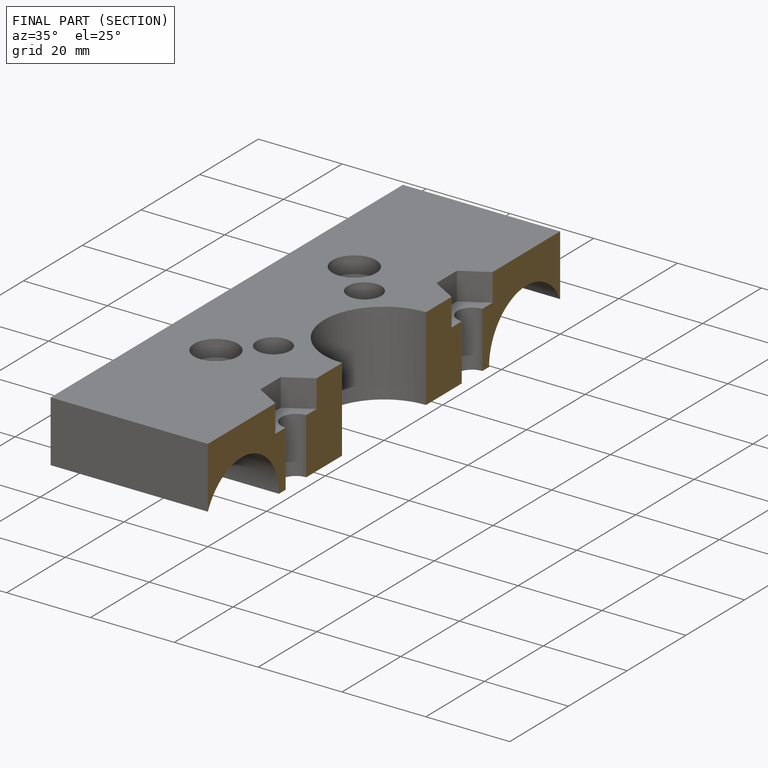
[diagram: finished part — half-section view (interior)]
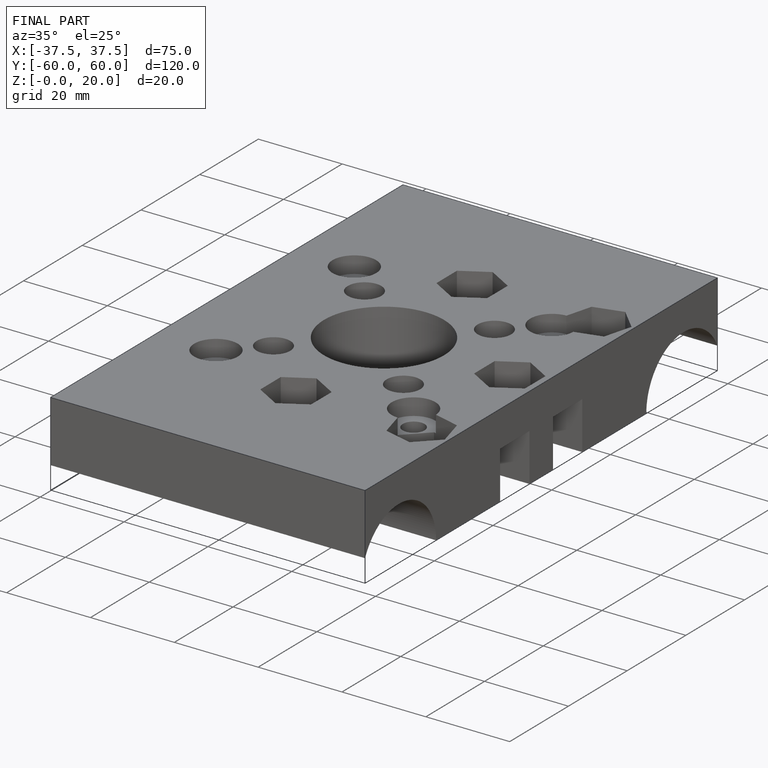
[diagram: finished part — iso view with bounding-box wireframe]
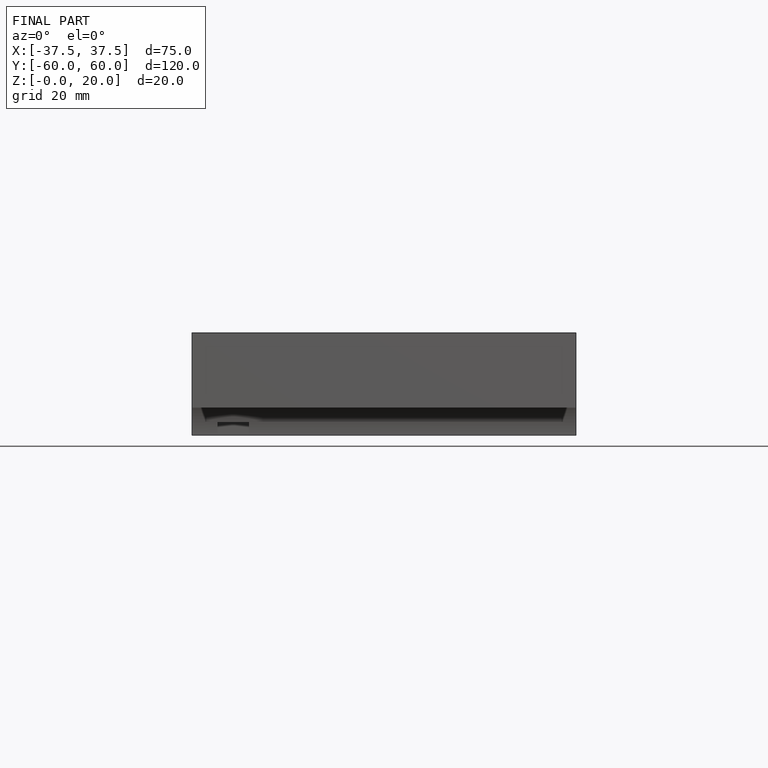
[diagram: finished part — front view with bounding-box wireframe]
